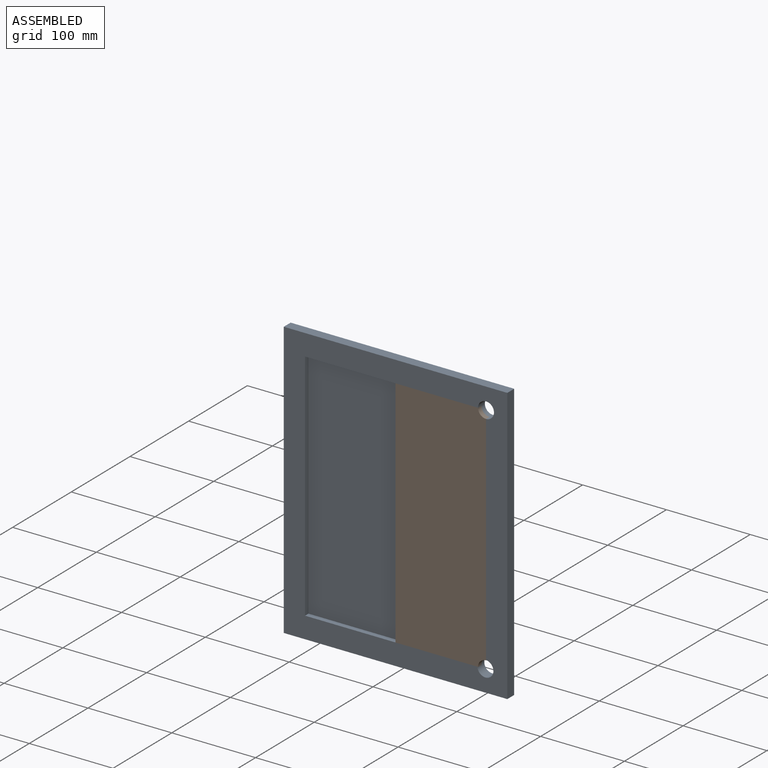
[diagram: assembled view]
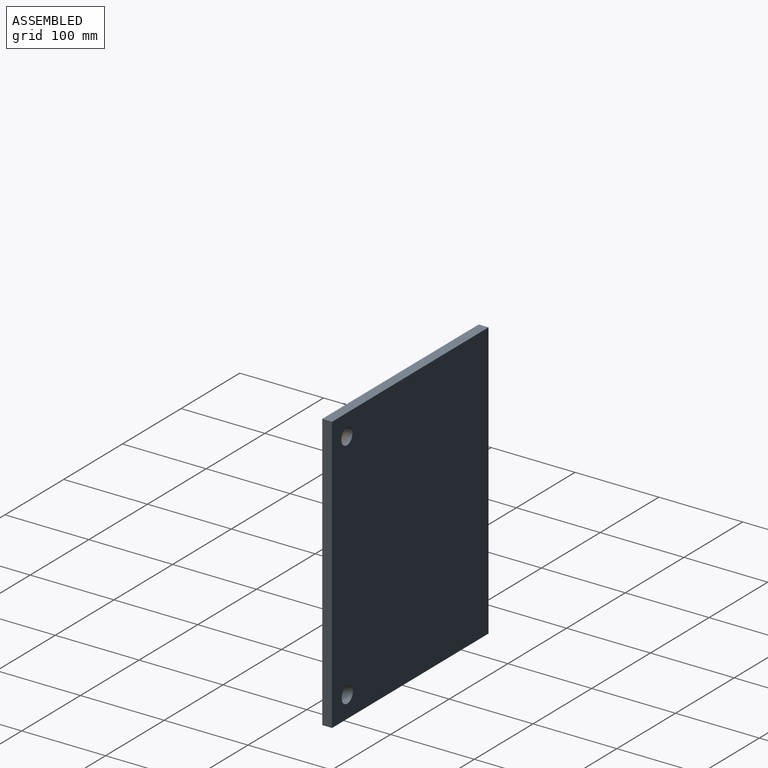
[diagram: assembled view, second angle]
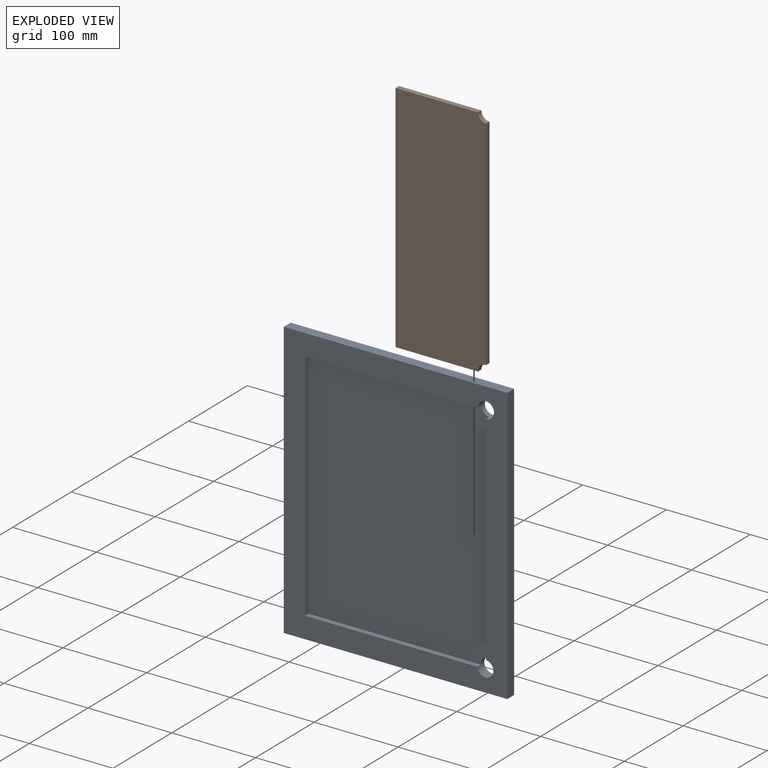
[diagram: exploded view]
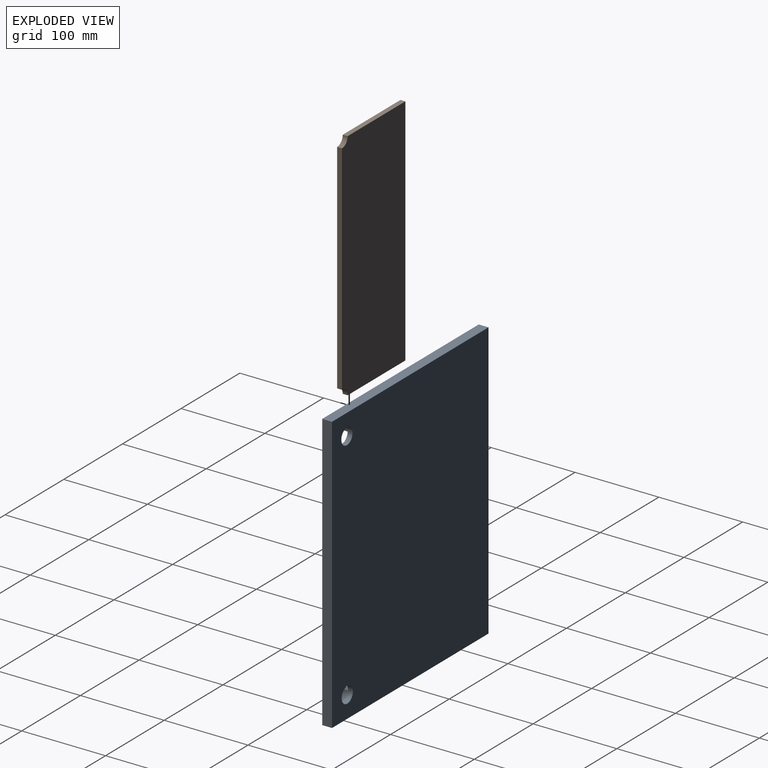
[diagram: exploded view, second angle]
ASSEMBLY  parts=2 mates=3
PART A: 13 faces, bbox 266.7x11.7x330.2 mm
  f0: plane 330.2x11.68mm, normal (-1,0,0), area 3858.1mm2, adj f1,f3,f4,f9
  f1: plane 266.7x11.68mm, normal (0,0,-1), area 3116.1mm2, adj f0,f2,f4,f9
  f2: plane 330.2x11.68mm, normal (1,0,0), area 3858.1mm2, adj f1,f3,f4,f9
  f3: plane 266.7x11.68mm, normal (0,0,1), area 3116.1mm2, adj f0,f2,f4,f9
  f4: plane 330.2x266.7mm, normal (0,1,0), area 87494.3mm2, adj f0,f1,f2,f3,f11,f12
  f5: plane 205.69x5.84mm, normal (0,0,1), area 1201.6mm2, adj f6,f9,f10,f12
  f6: plane 279.4x5.84mm, normal (1,0,0), area 1632.3mm2, adj f5,f7,f9,f10
  f7: plane 206.38x5.84mm, normal (0,0,-1), area 1205.6mm2, adj f6,f9,f10,f11
  f8: plane 259.95x5.84mm, normal (-1,0,0), area 1518.6mm2, adj f9,f10,f11,f12
  f9: plane 330.2x266.7mm, normal (0,-1,0), area 27325.4mm2, adj f0,f1,f2,f3,f5,f6,f7,f8
  f10: plane 279.4x215.9mm, normal (0,-1,0), area 60168.9mm2, adj f5,f6,f7,f8,f11,f12
  f11: cylinder r=9.53mm len=19.05mm, axis (0,-1,0), area 611.8mm2, adj f4,f7,f8,f9,f10
  f12: cylinder r=9.53mm len=19.05mm, axis (0,-1,0), area 605.3mm2, adj f4,f5,f8,f9,f10
PART B: 8 faces, bbox 108x5.8x279.4 mm
  f0: cylinder r=9.53mm len=9.53mm, axis (0,1,0), area 87.4mm2, adj f1,f5,f6,f7
  f1: plane 260.35x5.84mm, normal (1,0,0), area 1521mm2, adj f0,f2,f6,f7
  f2: cylinder r=9.53mm len=9.53mm, axis (0,1,0), area 87.4mm2, adj f1,f3,f6,f7
  f3: plane 98.43x5.84mm, normal (0,0,1), area 575mm2, adj f2,f4,f6,f7
  f4: plane 279.4x5.84mm, normal (-1,0,0), area 1632.3mm2, adj f3,f5,f6,f7
  f5: plane 98.43x5.84mm, normal (0,0,-1), area 575mm2, adj f0,f4,f6,f7
  f6: plane 279.4x107.95mm, normal (0,-1,0), area 30018.7mm2, adj f0,f1,f2,f3,f4,f5
  f7: plane 279.4x107.95mm, normal (0,1,0), area 30018.7mm2, adj f0,f1,f2,f3,f4,f5
PLACE A t=(-134.94,152.47,-35.49)mm
PLACE B t=(-1.59,146.63,-10.09)mm
MATE planar B.f3 <-> A.f7  axis (0,0,1) through (47.62,143.71,269.31)mm
MATE planar B.f7 <-> A.f10  axis (0,1,0) through (52.15,146.63,129.61)mm
MATE planar B.f1 <-> A.f8  axis (1,0,0) through (106.36,143.71,129.61)mm
